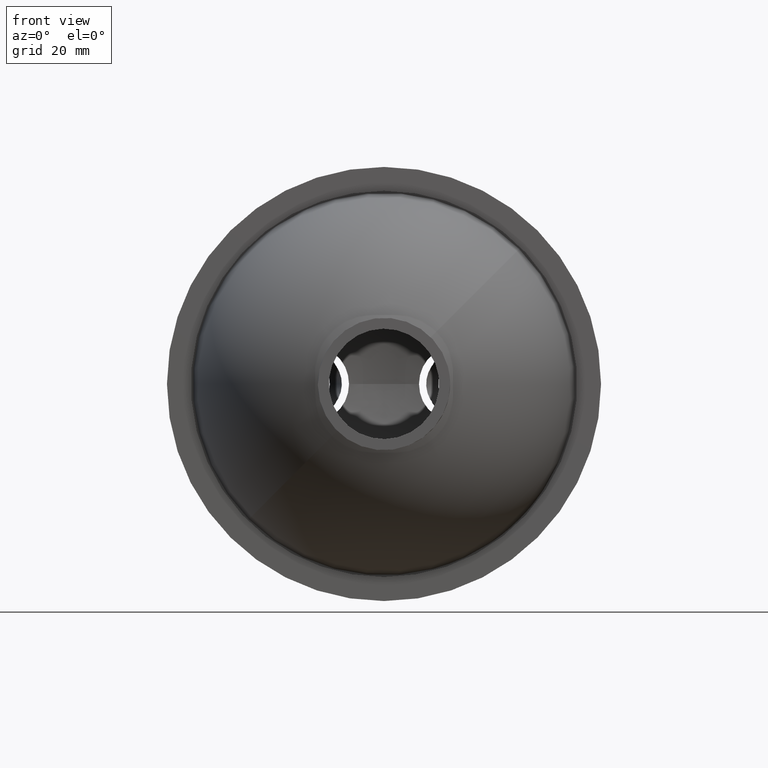
[diagram: clean part render]
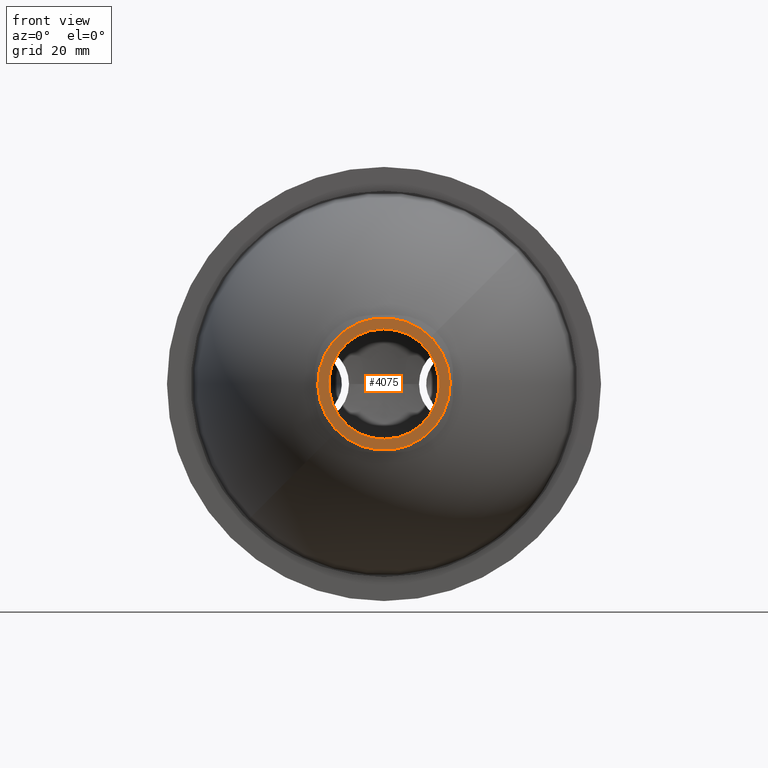
[diagram: same view with one face highlighted and labeled with its STEP entity id]
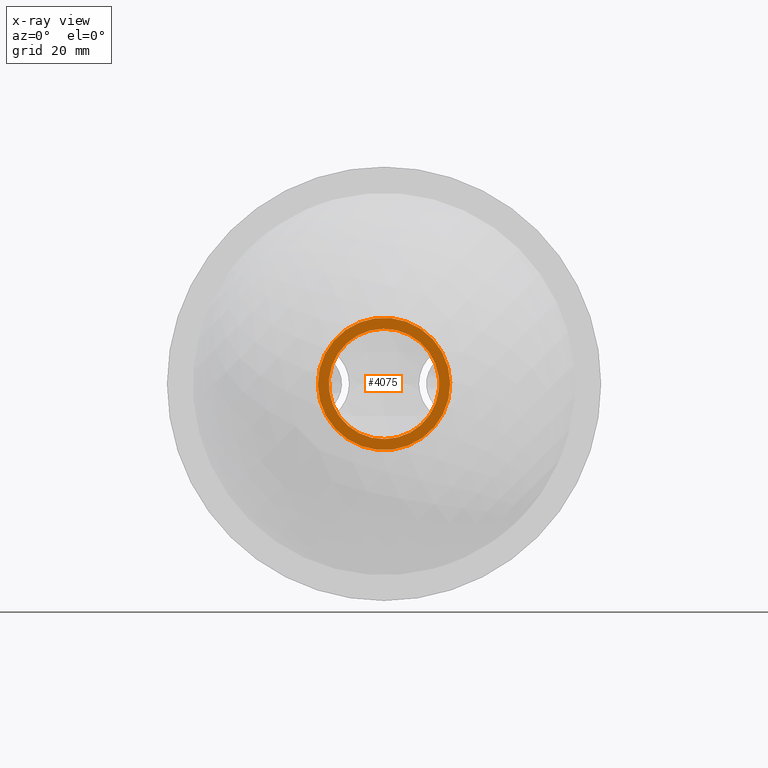
[diagram: x-ray of the same camera — body ghosted, the highlighted face saturated]
A machine part, front view. The second image highlights one B-rep face of the part: STEP entity #4075.
The next image is the same camera in x-ray: the body ghosted, the highlighted face saturated — about 0% of this face is hidden behind the body in this view.
In plain terms, the highlighted planar face has unit normal (0, -1, 0).
Its self-contained STEP definition (entity closure, byte-faithful):
#25 = DIRECTION ( 'NONE',  ( -0.9906130147005072217, 9.251858538542963939E-16, -0.1366962146731673100 ) ) ;
#66 = DIRECTION ( 'NONE',  ( 1.319618410642732927E-15, 1.000000000000000000, 6.798550856212744215E-17 ) ) ;
#93 = EDGE_CURVE ( 'NONE', #3495, #429, #6610, .T. ) ;
#111 = DIRECTION ( 'NONE',  ( 1.319618410642732927E-15, 1.000000000000000000, 6.798550856212744215E-17 ) ) ;
#221 = EDGE_CURVE ( 'NONE', #5854, #2636, #3398, .T. ) ;
#384 = AXIS2_PLACEMENT_3D ( 'NONE', #4701, #66, #25 ) ;
#429 = VERTEX_POINT ( 'NONE', #2023 ) ;
#759 = DIRECTION ( 'NONE',  ( -0.9906130147005072217, 9.251858538542963939E-16, -0.1366962146731673100 ) ) ;
#1110 = AXIS2_PLACEMENT_3D ( 'NONE', #5383, #111, #759 ) ;
#1152 = ORIENTED_EDGE ( 'NONE', *, *, #221, .T. ) ;
#1470 = DIRECTION ( 'NONE',  ( 2.817739501148578717E-17, -1.000000000000000000, 1.179989092188206708E-16 ) ) ;
#1624 = EDGE_LOOP ( 'NONE', ( #6457, #1921 ) ) ;
#1921 = ORIENTED_EDGE ( 'NONE', *, *, #93, .T. ) ;
#2023 = CARTESIAN_POINT ( 'NONE',  ( -6.375176270899309827, -70.85351538840666308, -2.050443220097510011 ) ) ;
#2062 = CARTESIAN_POINT ( 'NONE',  ( 23.34321417011592814, -70.85351538840669150, 2.050443220097513564 ) ) ;
#2215 = CIRCLE ( 'NONE', #384, 15.00000000000001066 ) ;
#2383 = EDGE_CURVE ( 'NONE', #429, #3495, #2215, .T. ) ;
#2528 = AXIS2_PLACEMENT_3D ( 'NONE', #6535, #4044, #5462 ) ;
#2622 = AXIS2_PLACEMENT_3D ( 'NONE', #5189, #3669, #5719 ) ;
#2636 = VERTEX_POINT ( 'NONE', #5599 ) ;
#2842 = AXIS2_PLACEMENT_3D ( 'NONE', #6081, #1470, #3537 ) ;
#3142 = PLANE ( 'NONE',  #2622 ) ;
#3203 = EDGE_LOOP ( 'NONE', ( #1152, #3804 ) ) ;
#3398 = CIRCLE ( 'NONE', #2528, 18.00000000000001421 ) ;
#3495 = VERTEX_POINT ( 'NONE', #2062 ) ;
#3537 = DIRECTION ( 'NONE',  ( -0.1366962146731672545, 0.000000000000000000, 0.9906130147005072217 ) ) ;
#3669 = DIRECTION ( 'NONE',  ( 2.817739501148579950E-17, -1.000000000000000000, 1.179989092188205475E-16 ) ) ;
#3804 = ORIENTED_EDGE ( 'NONE', *, *, #4684, .T. ) ;
#4044 = DIRECTION ( 'NONE',  ( 2.817739501148578717E-17, -1.000000000000000000, 1.179989092188206708E-16 ) ) ;
#4075 = ADVANCED_FACE ( 'NONE', ( #6297, #5694 ), #3142, .T. ) ;
#4120 = CIRCLE ( 'NONE', #2842, 18.00000000000001421 ) ;
#4684 = EDGE_CURVE ( 'NONE', #2636, #5854, #4120, .T. ) ;
#4701 = CARTESIAN_POINT ( 'NONE',  ( 8.484018949608307381, -70.85351538840667729, 1.222609524750632240E-15 ) ) ;
#5189 = CARTESIAN_POINT ( 'NONE',  ( 8.484018949608307381, -70.85351538840666308, 1.222609524750630663E-15 ) ) ;
#5383 = CARTESIAN_POINT ( 'NONE',  ( 8.484018949608307381, -70.85351538840667729, 1.222609524750632240E-15 ) ) ;
#5462 = DIRECTION ( 'NONE',  ( -0.1366962146731672545, 0.000000000000000000, 0.9906130147005072217 ) ) ;
#5599 = CARTESIAN_POINT ( 'NONE',  ( 6.023487085491294302, -70.85351538840666308, 17.83103426460912999 ) ) ;
#5694 = FACE_OUTER_BOUND ( 'NONE', #3203, .T. ) ;
#5719 = DIRECTION ( 'NONE',  ( -0.1366962146731673100, 1.130395119552065923E-16, 0.9906130147005073328 ) ) ;
#5854 = VERTEX_POINT ( 'NONE', #6388 ) ;
#6081 = CARTESIAN_POINT ( 'NONE',  ( 8.484018949608307381, -70.85351538840666308, 1.222609524750630663E-15 ) ) ;
#6297 = FACE_BOUND ( 'NONE', #1624, .T. ) ;
#6388 = CARTESIAN_POINT ( 'NONE',  ( 10.94455081372531957, -70.85351538840666308, -17.83103426460912999 ) ) ;
#6457 = ORIENTED_EDGE ( 'NONE', *, *, #2383, .T. ) ;
#6535 = CARTESIAN_POINT ( 'NONE',  ( 8.484018949608307381, -70.85351538840666308, 1.222609524750630663E-15 ) ) ;
#6610 = CIRCLE ( 'NONE', #1110, 15.00000000000001066 ) ;